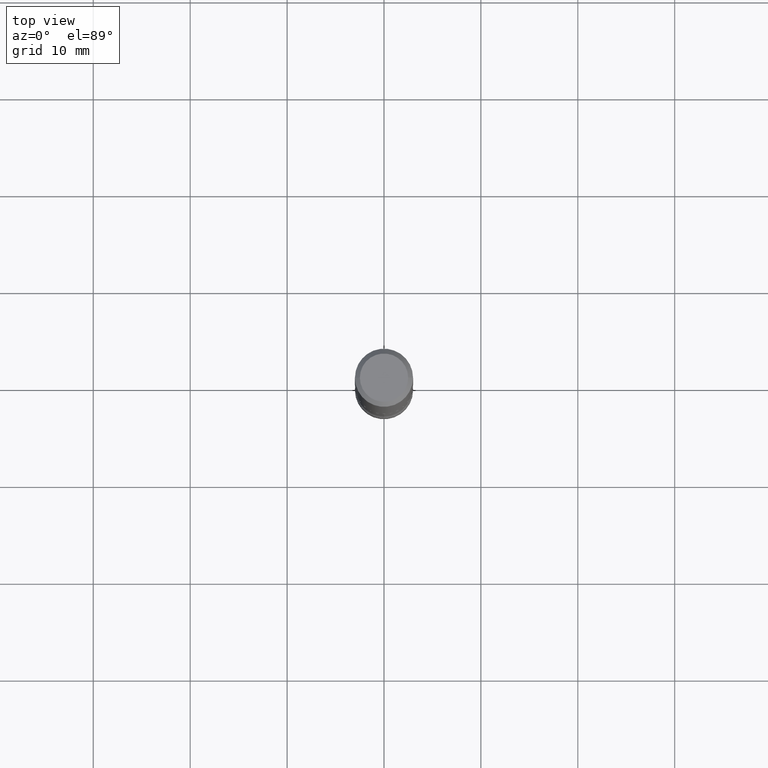
[diagram: clean part render]
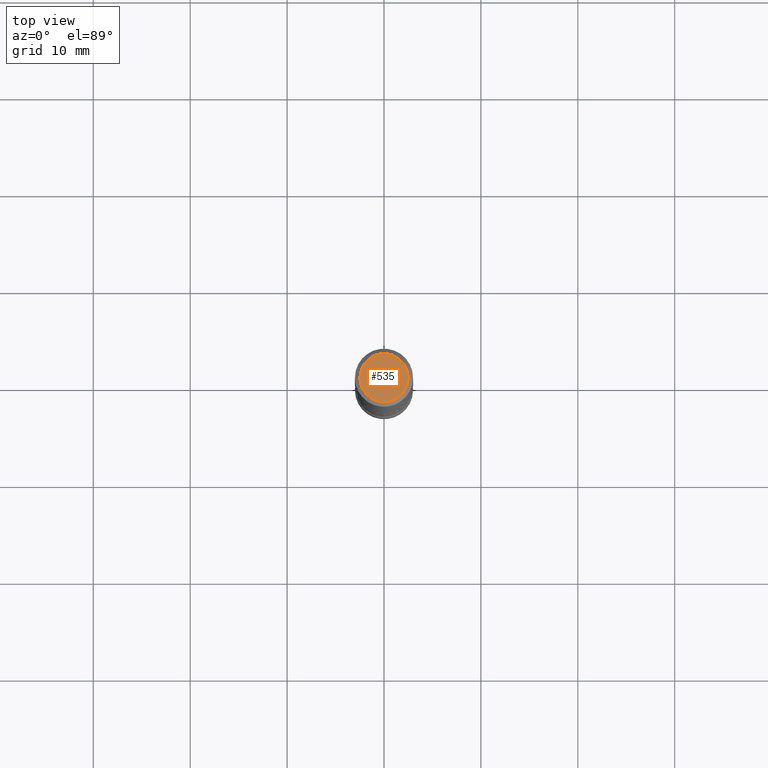
[diagram: same view with one face highlighted and labeled with its STEP entity id]
A machine part, top view. The second image highlights one B-rep face of the part: STEP entity #535.
In plain terms, the highlighted planar face has unit normal (0, -0, -1).
Its self-contained STEP definition (entity closure, byte-faithful):
#62 = ORIENTED_EDGE ( 'NONE', *, *, #374, .T. ) ;
#89 = PLANE ( 'NONE',  #552 ) ;
#100 = DIRECTION ( 'NONE',  ( -1.000000000000000000, 6.982962677686265922E-15, -4.876176775795935793E-29 ) ) ;
#115 = CARTESIAN_POINT ( 'NONE',  ( 8.350811314681758556E-46, -1.192274536304357760E-31, -3.414809992080329023E-17 ) ) ;
#198 = DIRECTION ( 'NONE',  ( -2.445468806185136597E-29, 3.491481338843145583E-15, 1.000000000000000000 ) ) ;
#202 = FACE_OUTER_BOUND ( 'NONE', #232, .T. ) ;
#219 = AXIS2_PLACEMENT_3D ( 'NONE', #115, #198, #427 ) ;
#232 = EDGE_LOOP ( 'NONE', ( #267, #62 ) ) ;
#267 = ORIENTED_EDGE ( 'NONE', *, *, #493, .T. ) ;
#270 = CIRCLE ( 'NONE', #219, 0.09810000000000028419 ) ;
#280 = DIRECTION ( 'NONE',  ( 1.000000000000000000, -6.982962677686266711E-15, 4.877161320636752779E-29 ) ) ;
#327 = CARTESIAN_POINT ( 'NONE',  ( 8.350811314681758556E-46, -1.192274536304357760E-31, -3.414809992080329023E-17 ) ) ;
#344 = CARTESIAN_POINT ( 'NONE',  ( -0.09810000000000028419, 7.199434520694558791E-16, -3.414809992080820212E-17 ) ) ;
#349 = VERTEX_POINT ( 'NONE', #452 ) ;
#352 = DIRECTION ( 'NONE',  ( 2.438088387897960049E-29, -3.491481338843145188E-15, -1.000000000000000000 ) ) ;
#363 = DIRECTION ( 'NONE',  ( -2.445468806185136597E-29, 3.491481338843145583E-15, 1.000000000000000000 ) ) ;
#374 = EDGE_CURVE ( 'NONE', #349, #481, #434, .T. ) ;
#393 = AXIS2_PLACEMENT_3D ( 'NONE', #327, #363, #280 ) ;
#427 = DIRECTION ( 'NONE',  ( 1.000000000000000000, -6.982962677686266711E-15, 4.877161320636752779E-29 ) ) ;
#434 = CIRCLE ( 'NONE', #393, 0.09810000000000028419 ) ;
#452 = CARTESIAN_POINT ( 'NONE',  ( 0.09810000000000028419, -7.765346469475362235E-16, -3.414809992079818112E-17 ) ) ;
#481 = VERTEX_POINT ( 'NONE', #344 ) ;
#493 = EDGE_CURVE ( 'NONE', #481, #349, #270, .T. ) ;
#506 = CARTESIAN_POINT ( 'NONE',  ( 6.850286386810246244E-16, 0.09810000000000028419, -3.595883693009152023E-16 ) ) ;
#535 = ADVANCED_FACE ( 'NONE', ( #202 ), #89, .F. ) ;
#552 = AXIS2_PLACEMENT_3D ( 'NONE', #506, #352, #100 ) ;